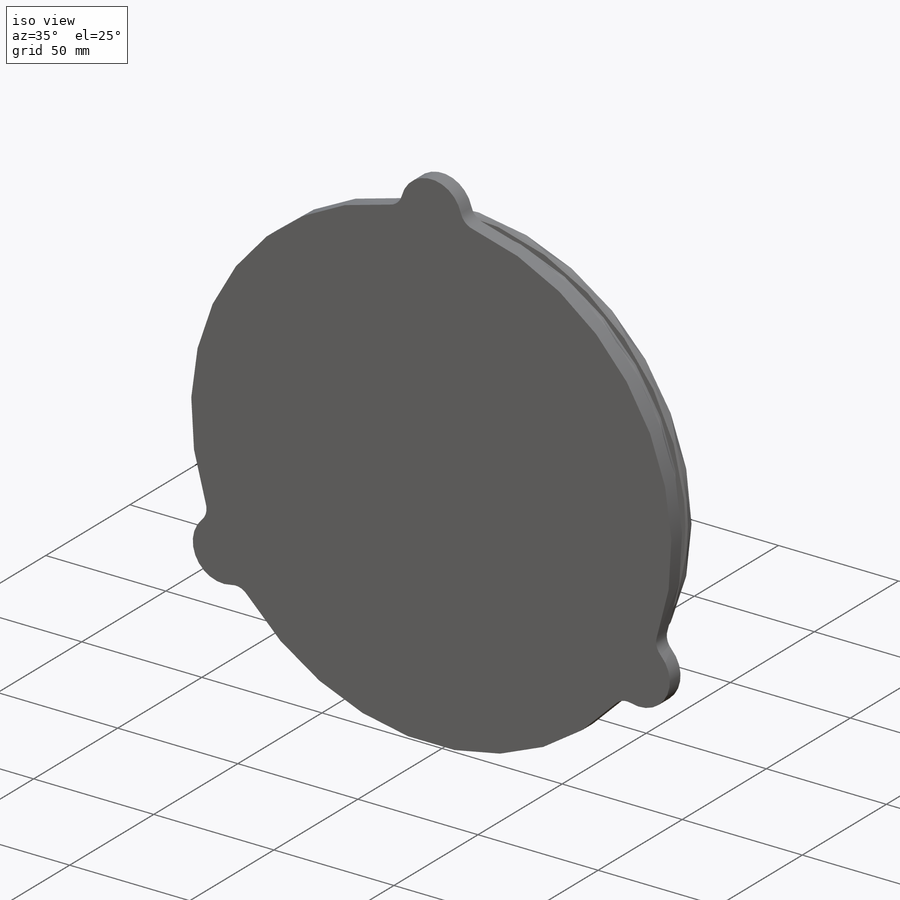
[diagram: iso view]
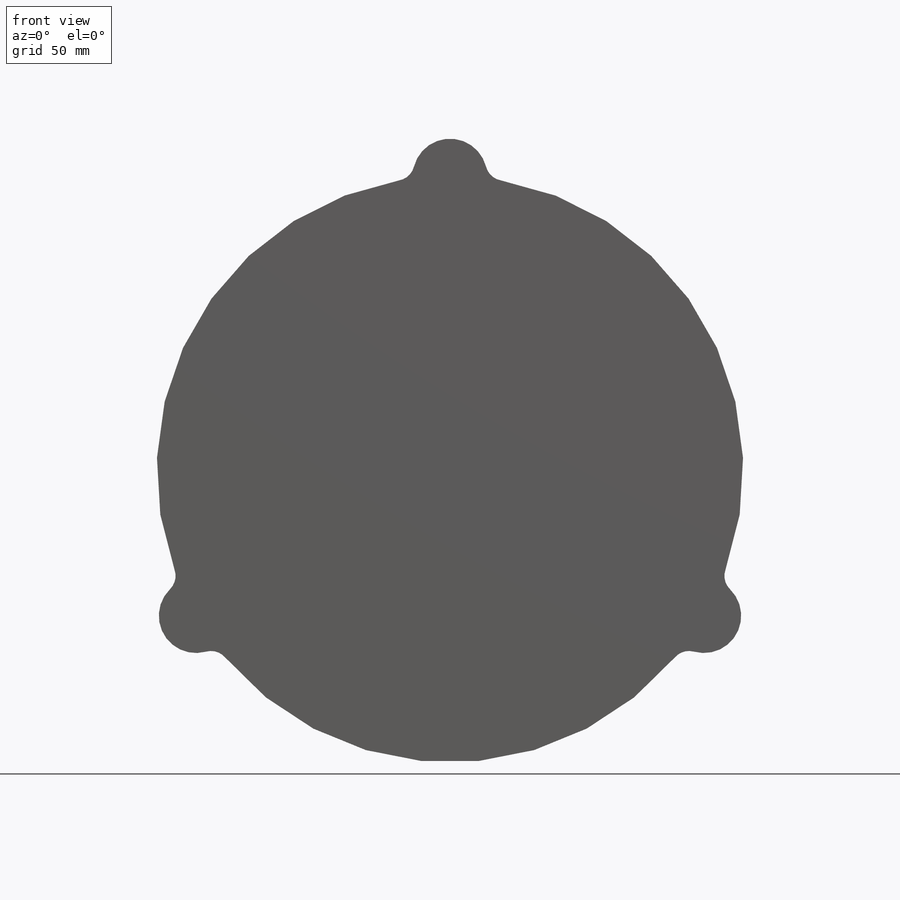
[diagram: front view]
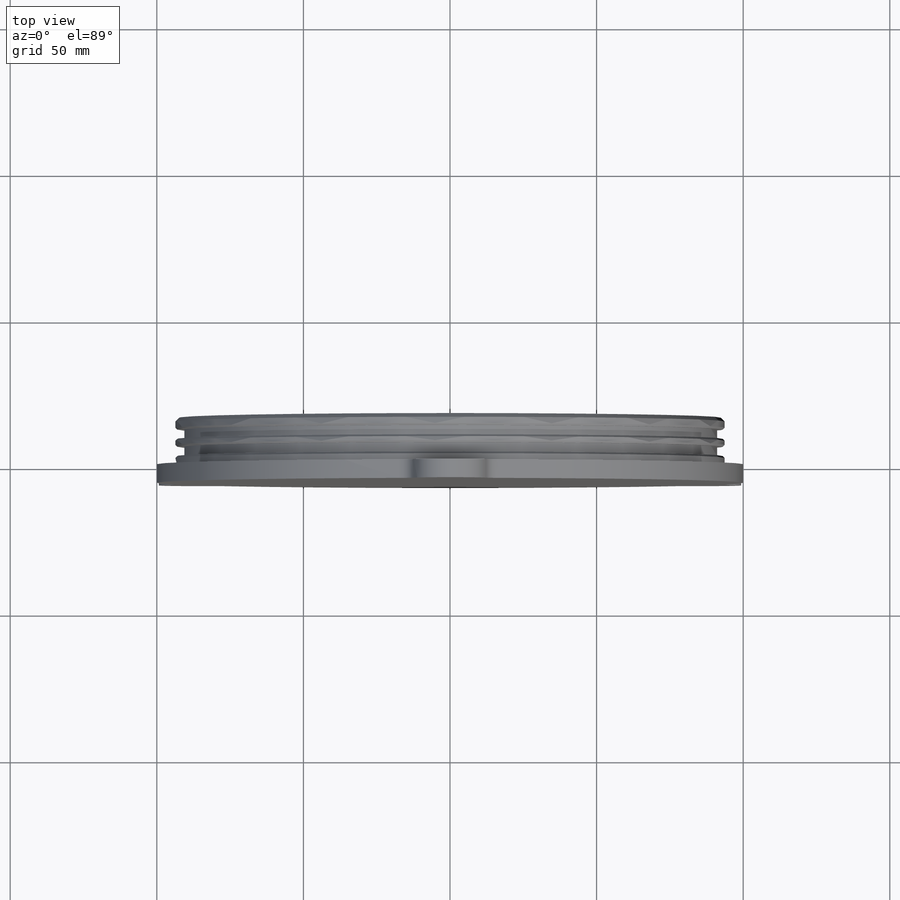
[diagram: top view]
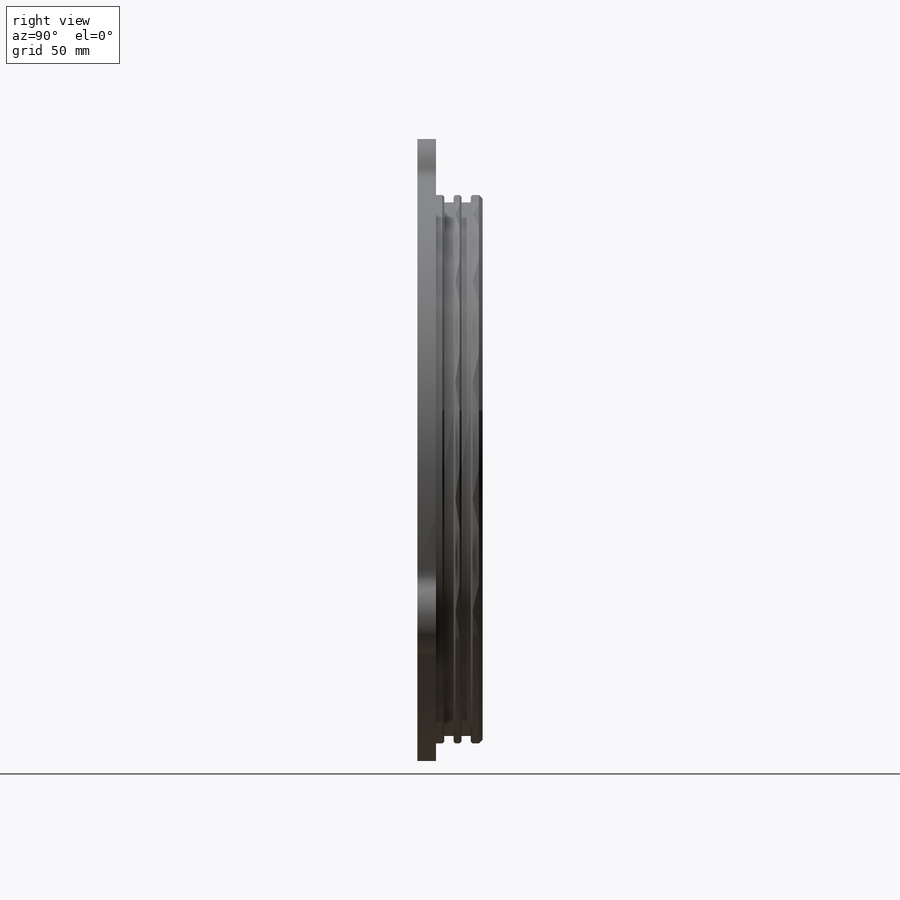
[diagram: right view]
SOLIDWORKS PART (.sldprt)
format: sldprt  version: not decoded by parser v0  size: 273,408 bytes
history: native  units: mm
features: sketch x5, extrude x3, chamfer x2, material x1, cut_extrude x1, cut_revolve x1, fillet x1 (+11 scaffold rows collapsed)
feature tree (25):
  scaffold x11  (default folders/planes/origin — collapsed)
  material  "6061-T6 (SS)"
  sketch  "Sketch1"  dims[D1=200.025mm]
  extrude  "Extrude1"  Depth=6.35mm
  sketch  "Sketch2"  dims[D1=187.325mm]
  extrude  "Extrude2"  Depth=15.875mm
  sketch  "Sketch3"  dims[D1=174.625mm]
  cut_extrude  "Cut-Extrude1"  Depth=15.875mm
  sketch  "Sketch4"  dims[D1=2.54mm D2=3.175mm D3=~2.808412mm D4=~2.681079mm]
  cut_revolve  "Cut-Revolve1"  Angle=360deg
  chamfer  "Chamfer1"  Distance=1.27mm Angle=45deg
  sketch  "Sketch8"  dims[c1.D1=12.7mm c1.D2=12.7mm c1.D3=12.7mm c2.D1=30.0deg c2.D4=~86.562005mm c3.D4=120.0deg c3.D5=~86.562005mm c4.D5=120.0deg]
  extrude  "Extrude3"  [1 undecoded]
  chamfer  "Chamfer2"  Distance=0.635mm Angle=45deg
  fillet  "Fillet1"  Radius=6.35mm
decode coverage: 12 of 13 modeling features carry decoded parameters
note: ~ marks probable driven/reference dimensions
note: 1 parameter value undecoded
note: suppression state not decoded; provenance and decode notes live in map.json
